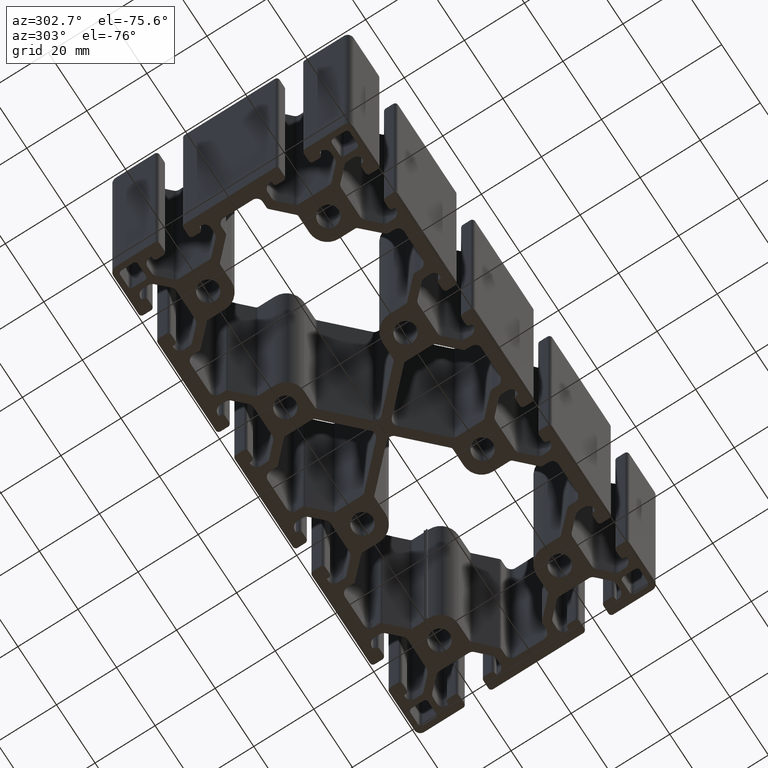
[diagram: clean part render]
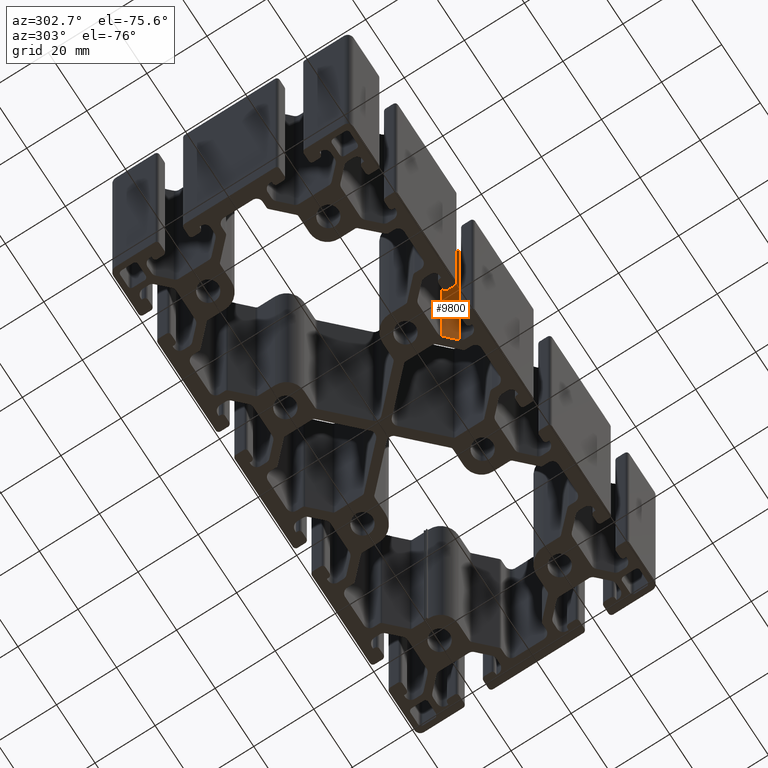
[diagram: same view with one face highlighted and labeled with its STEP entity id]
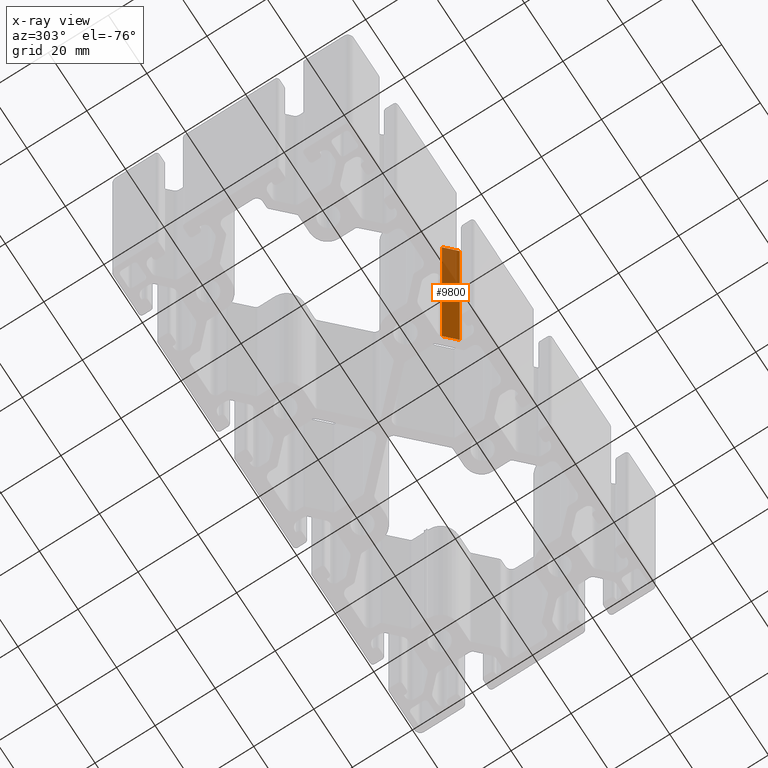
[diagram: x-ray of the same camera — body ghosted, the highlighted face saturated]
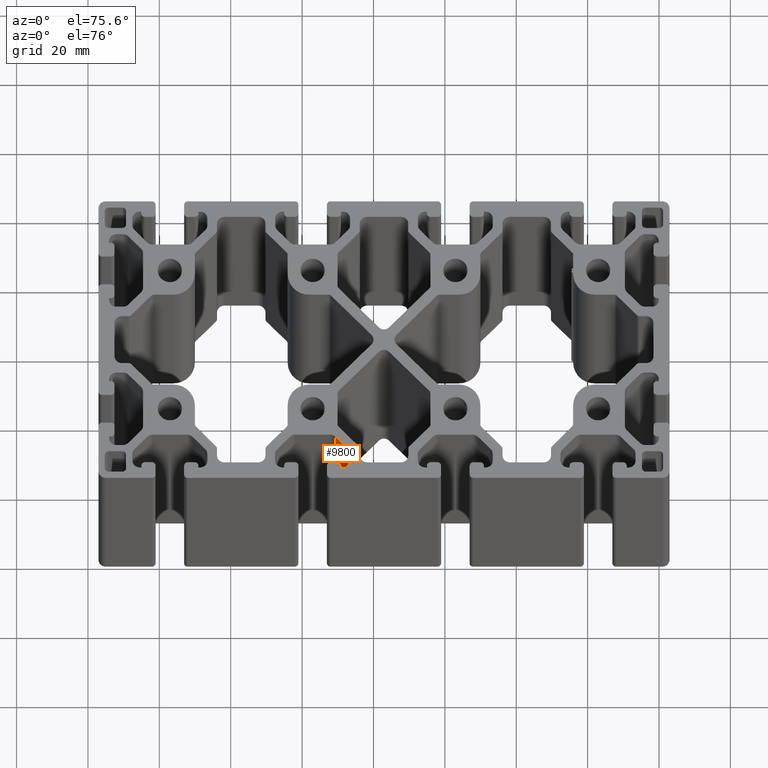
[diagram: same view with one face highlighted and labeled with its STEP entity id]
A machine part, auxiliary view. The second image highlights one B-rep face of the part: STEP entity #9800.
The next image is the same camera in x-ray: the body ghosted, the highlighted face saturated — about 36% of this face is hidden behind the body in this view.
A second angle (auxiliary view) of the same face is appended — the face is thin or edge-on in the first view.
In plain terms, the highlighted planar face has unit normal (0.7071, 0.7071, 0).
Its self-contained STEP definition (entity closure, byte-faithful):
#97=PLANE('',#10791);
#481=FACE_OUTER_BOUND('',#1026,.T.);
#1026=EDGE_LOOP('',(#8027,#8028,#8029,#8030));
#1456=LINE('',#14508,#2473);
#1729=LINE('',#15531,#2746);
#2047=LINE('',#16463,#3064);
#2048=LINE('',#16465,#3065);
#2473=VECTOR('',#11435,5.08578644086191);
#2746=VECTOR('',#12190,5.08578644086191);
#3064=VECTOR('',#13108,100.);
#3065=VECTOR('',#13111,100.);
#4067=VERTEX_POINT('',#14505);
#4068=VERTEX_POINT('',#14507);
#4576=VERTEX_POINT('',#15528);
#4577=VERTEX_POINT('',#15530);
#5073=EDGE_CURVE('',#4067,#4068,#1456,.T.);
#5586=EDGE_CURVE('',#4577,#4576,#1729,.T.);
#6055=EDGE_CURVE('',#4067,#4577,#2047,.T.);
#6056=EDGE_CURVE('',#4068,#4576,#2048,.T.);
#8027=ORIENTED_EDGE('',*,*,#5586,.T.);
#8028=ORIENTED_EDGE('',*,*,#6056,.F.);
#8029=ORIENTED_EDGE('',*,*,#5073,.F.);
#8030=ORIENTED_EDGE('',*,*,#6055,.T.);
#9800=ADVANCED_FACE('',(#481),#97,.F.);
#10791=AXIS2_PLACEMENT_3D('',#16464,#13109,#13110);
#11435=DIRECTION('',(0.707106781186548,-0.707106781186547,0.));
#12190=DIRECTION('',(0.707106781186548,-0.707106781186547,0.));
#13108=DIRECTION('',(0.,0.,-1.));
#13109=DIRECTION('center_axis',(0.707106781186548,0.707106781186548,0.));
#13110=DIRECTION('ref_axis',(0.,0.,-1.));
#13111=DIRECTION('',(0.,0.,-1.));
#14505=CARTESIAN_POINT('',(-10.7322330410283,-28.0857864244986,100.));
#14507=CARTESIAN_POINT('',(-7.13603896102822,-31.6819805044986,100.));
#14508=CARTESIAN_POINT('',(-10.7322330410283,-28.0857864244986,100.));
#15528=CARTESIAN_POINT('',(-7.13603896102822,-31.6819805044986,0.));
#15530=CARTESIAN_POINT('',(-10.7322330410283,-28.0857864244986,0.));
#15531=CARTESIAN_POINT('',(-10.7322330410283,-28.0857864244986,0.));
#16463=CARTESIAN_POINT('',(-10.7322330410283,-28.0857864244986,100.));
#16464=CARTESIAN_POINT('Origin',(-6.95622925702821,-31.8617902084986,-5.));
#16465=CARTESIAN_POINT('',(-7.13603896102822,-31.6819805044986,100.));